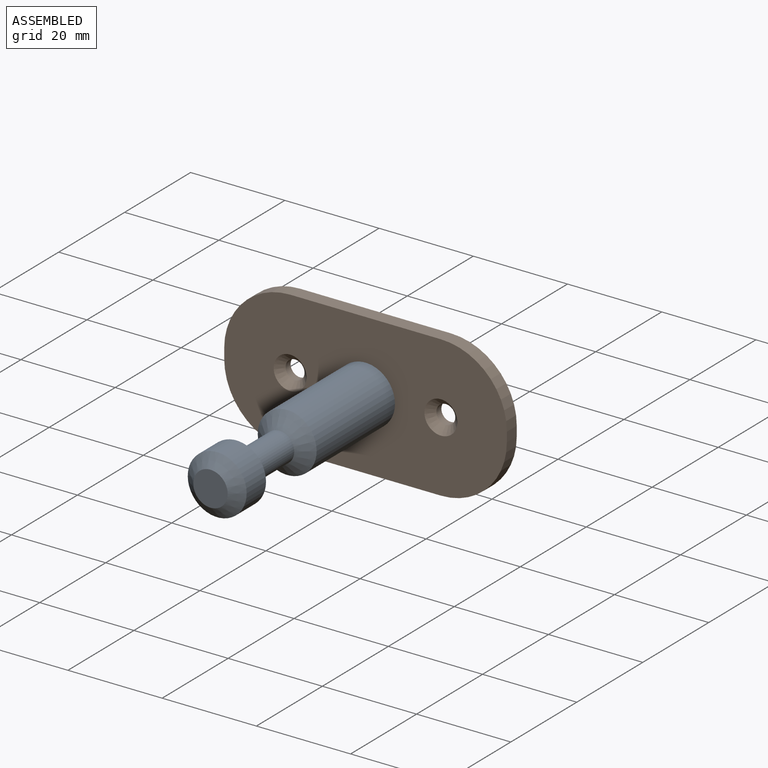
[diagram: assembled view]
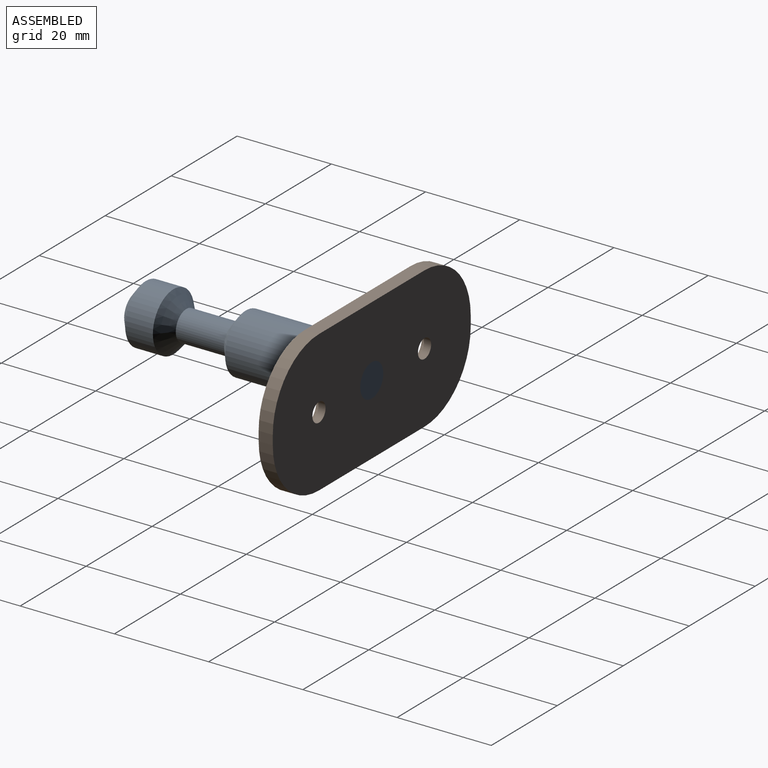
[diagram: assembled view, second angle]
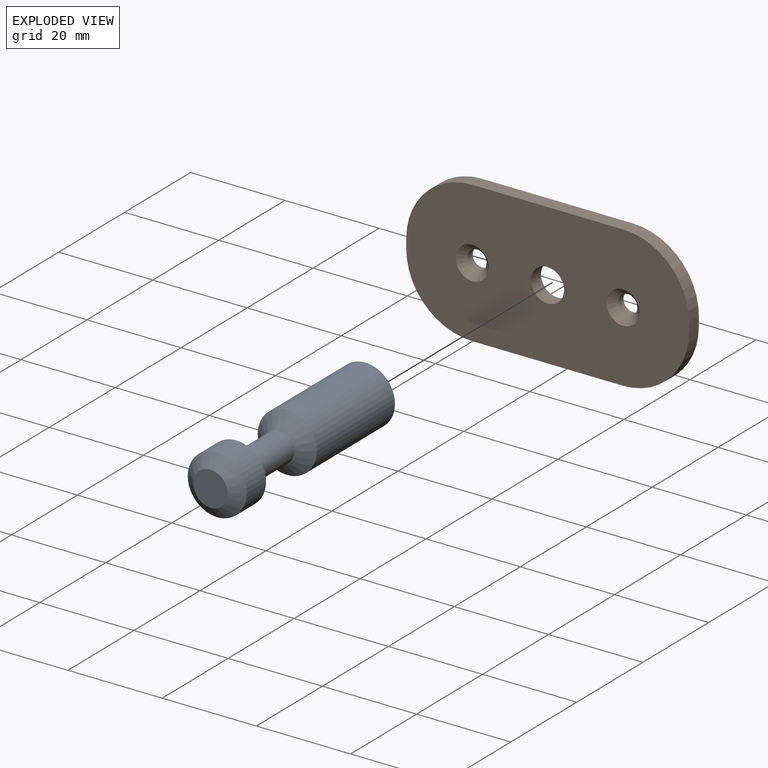
[diagram: exploded view]
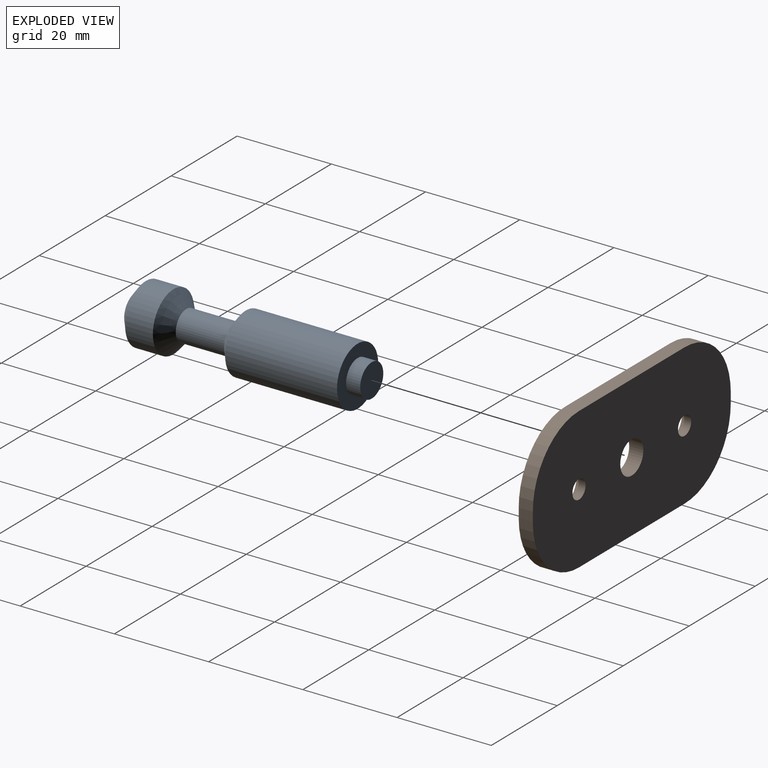
[diagram: exploded view, second angle]
ASSEMBLY  parts=2 mates=2
PART A: 10 faces, bbox 12.5x12.5x50 mm
  f0: cone r=3.65mm half-angle=52deg, axis (0,0,-1), area 102.7mm2, adj f1,f9
  f1: cone r=3.65mm half-angle=90deg, axis (0,0,-1), area 41.8mm2, adj f0
  f2: plane 7x7mm, normal (0,0,-1), area 38.5mm2, adj f3
  f3: cylinder r=3.5mm len=7mm, axis (0,0,1), area 66mm2, adj f2,f4
  f4: plane 12.5x12.5mm, normal (0,0,-1), area 84.2mm2, adj f3,f5
  f5: cylinder r=6.25mm len=23.75mm, axis (0,0,1), area 932.7mm2, adj f4,f6
  f6: cone r=3.18mm half-angle=52deg, axis (0,0,-1), area 115.5mm2, adj f5,f7
  f7: cylinder r=3.18mm len=10.22mm, axis (0,0,1), area 203.9mm2, adj f6,f8
  f8: cone r=6.25mm half-angle=48.5deg, axis (0,0,1), area 121.5mm2, adj f7,f9
  f9: cylinder r=6.25mm len=12.5mm, axis (0,0,1), area 230.9mm2, adj f0,f8
PART B: 15 faces, bbox 60x3x30 mm
  f0: cylinder r=14mm len=14mm, axis (0,1,0), area 66mm2, adj f1,f10,f11,f12
  f1: plane 32x3mm, normal (0,0,1), area 96mm2, adj f0,f2,f11,f12
  f2: cylinder r=14mm len=14mm, axis (0,1,0), area 66mm2, adj f1,f3,f11,f12
  f3: plane 3x2mm, normal (-1,0,0), area 6mm2, adj f2,f4,f11,f12
  f4: cylinder r=14mm len=14mm, axis (0,1,0), area 66mm2, adj f3,f5,f11,f12
  f5: plane 32x3mm, normal (0,0,-1), area 96mm2, adj f4,f6,f11,f12
  f6: cylinder r=14mm len=14mm, axis (0,1,0), area 66mm2, adj f5,f10,f11,f12
  f7: cylinder r=2mm len=4mm, axis (0,1,0), area 18.8mm2, adj f12,f14
  f8: cylinder r=2mm len=4mm, axis (0,1,0), area 18.8mm2, adj f12,f13
  f9: cylinder r=3.5mm len=7mm, axis (0,1,0), area 66mm2, adj f11,f12
  f10: plane 3x2mm, normal (1,0,0), area 6mm2, adj f0,f6,f11,f12
  f11: plane 60x30mm, normal (0,-1,0), area 1516.3mm2, adj f0,f1,f2,f3,f4,f5,f6,f9
  f12: plane 60x30mm, normal (0,1,0), area 1568.1mm2, adj f0,f1,f2,f3,f4,f5,f6,f7
  f13: cone r=2mm half-angle=45deg, axis (0,-1,0), area 36.7mm2, adj f8,f11
  f14: cone r=2mm half-angle=45deg, axis (0,-1,0), area 36.7mm2, adj f7,f11
PLACE A rot(axis=(1,0,0),90deg) t=(-2.54,-18.67,-5.93)mm
PLACE B t=(-2.54,-3.16,-5.93)mm
MATE planar A.f0 <-> B.f11  axis (0,1,0) through (-2.54,-6.16,-5.93)mm
MATE planar B.f9 <-> A.f0  axis (0,1,0) through (-2.54,-4.66,-5.93)mm
